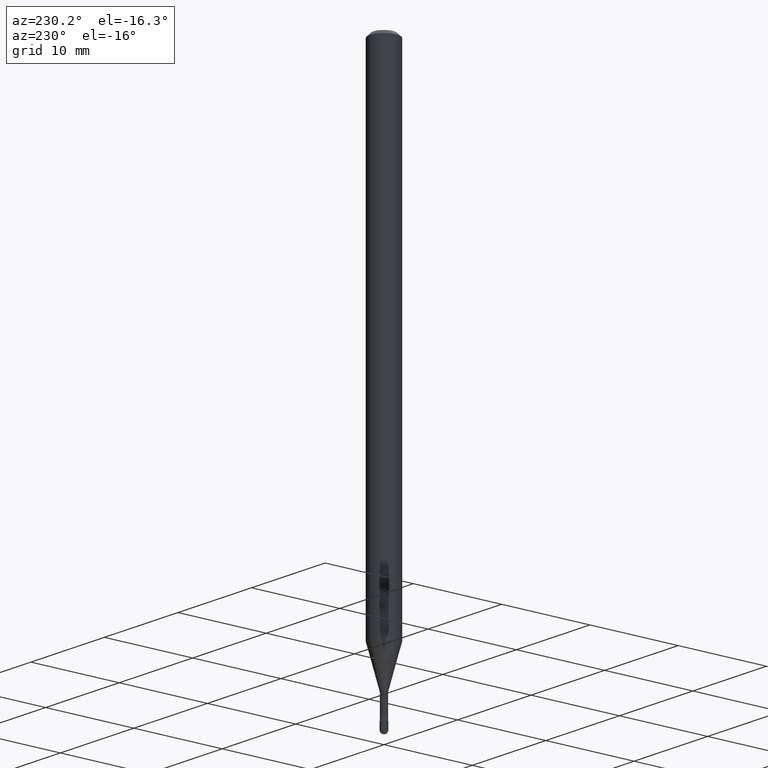
[diagram: clean part render]
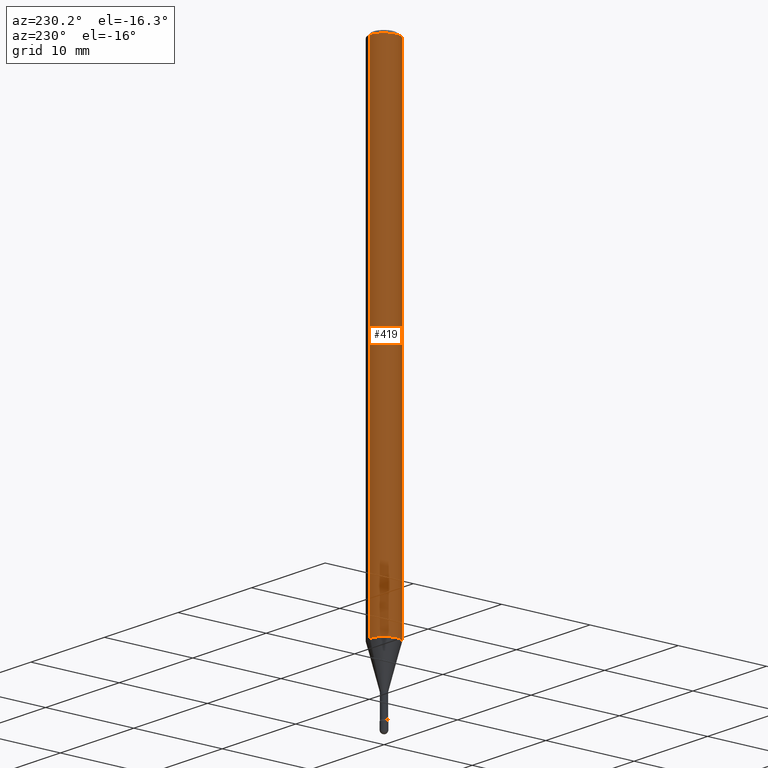
[diagram: same view with one face highlighted and labeled with its STEP entity id]
A machine part, auxiliary view. The second image highlights one B-rep face of the part: STEP entity #419.
In plain terms, the highlighted cylindrical surface (edge-blend (fillet) strip) has radius 1.5875 mm, axis along (-0, 0, 1).
Its self-contained STEP definition (entity closure, byte-faithful):
#24 = DIRECTION ( 'NONE',  ( -2.445515325509068465E-29, 3.491414720523559495E-15, 1.000000000000000000 ) ) ;
#33 = VERTEX_POINT ( 'NONE', #382 ) ;
#40 = CARTESIAN_POINT ( 'NONE',  ( 4.440892098501154699E-16, 0.06249999999999240885, -2.169368740913667271 ) ) ;
#140 = CYLINDRICAL_SURFACE ( 'NONE', #552, 0.06250000000000000000 ) ;
#172 = EDGE_CURVE ( 'NONE', #298, #371, #269, .T. ) ;
#177 = DIRECTION ( 'NONE',  ( -2.445515325509068465E-29, 3.491414720523559495E-15, 1.000000000000000000 ) ) ;
#181 = FACE_OUTER_BOUND ( 'NONE', #328, .T. ) ;
#187 = CARTESIAN_POINT ( 'NONE',  ( 4.440892098500625669E-16, 0.06250000000000000000, 2.598599788585235948E-16 ) ) ;
#206 = DIRECTION ( 'NONE',  ( -6.982962677686265922E-15, -1.000000000000000000, 4.370956789862821150E-15 ) ) ;
#221 = CARTESIAN_POINT ( 'NONE',  ( -1.169113584055446105E-44, 1.669184350826100908E-30, 4.780733988912460139E-16 ) ) ;
#230 = LINE ( 'NONE', #187, #287 ) ;
#262 = DIRECTION ( 'NONE',  ( -2.445515325509068745E-29, 3.491414720523559101E-15, 1.000000000000000000 ) ) ;
#269 = CIRCLE ( 'NONE', #433, 0.06250000000000000000 ) ;
#270 = CIRCLE ( 'NONE', #395, 0.06250000000000000000 ) ;
#273 = ORIENTED_EDGE ( 'NONE', *, *, #538, .F. ) ;
#274 = CARTESIAN_POINT ( 'NONE',  ( 3.668272988263622946E-31, -5.237122080785368381E-17, -0.01500000000000008271 ) ) ;
#286 = VECTOR ( 'NONE', #262, 39.37007874015748143 ) ;
#287 = VECTOR ( 'NONE', #372, 39.37007874015748143 ) ;
#293 = EDGE_CURVE ( 'NONE', #371, #360, #564, .T. ) ;
#295 = CARTESIAN_POINT ( 'NONE',  ( -4.364351673553385199E-16, -0.06250000000000757727, -2.169368740913666826 ) ) ;
#298 = VERTEX_POINT ( 'NONE', #40 ) ;
#328 = EDGE_LOOP ( 'NONE', ( #273, #479, #472, #348 ) ) ;
#348 = ORIENTED_EDGE ( 'NONE', *, *, #494, .F. ) ;
#355 = CARTESIAN_POINT ( 'NONE',  ( -4.364351673553912750E-16, -0.06250000000000005551, -0.01499999999999986587 ) ) ;
#360 = VERTEX_POINT ( 'NONE', #355 ) ;
#371 = VERTEX_POINT ( 'NONE', #295 ) ;
#372 = DIRECTION ( 'NONE',  ( -2.445515325509068745E-29, 3.491414720523559101E-15, 1.000000000000000000 ) ) ;
#382 = CARTESIAN_POINT ( 'NONE',  ( 4.440892098501160615E-16, 0.06249999999999995837, -0.01500000000000030129 ) ) ;
#395 = AXIS2_PLACEMENT_3D ( 'NONE', #274, #440, #404 ) ;
#404 = DIRECTION ( 'NONE',  ( -6.982962677686265922E-15, -1.000000000000000000, 3.483106191921935554E-15 ) ) ;
#417 = CARTESIAN_POINT ( 'NONE',  ( 5.305224502584683767E-29, -7.574165956269636631E-15, -2.169368740913666826 ) ) ;
#419 = ADVANCED_FACE ( 'NONE', ( #181 ), #140, .T. ) ;
#433 = AXIS2_PLACEMENT_3D ( 'NONE', #417, #24, #206 ) ;
#440 = DIRECTION ( 'NONE',  ( -2.445515325509068465E-29, 3.491414720523559495E-15, 1.000000000000000000 ) ) ;
#472 = ORIENTED_EDGE ( 'NONE', *, *, #293, .T. ) ;
#479 = ORIENTED_EDGE ( 'NONE', *, *, #172, .T. ) ;
#494 = EDGE_CURVE ( 'NONE', #33, #360, #270, .T. ) ;
#508 = CARTESIAN_POINT ( 'NONE',  ( -4.364351673553916201E-16, -0.06250000000000000000, 6.962868189239685810E-16 ) ) ;
#523 = DIRECTION ( 'NONE',  ( -6.982962677686265922E-15, -1.000000000000000000, 3.491414720523560678E-15 ) ) ;
#538 = EDGE_CURVE ( 'NONE', #298, #33, #230, .T. ) ;
#552 = AXIS2_PLACEMENT_3D ( 'NONE', #221, #177, #523 ) ;
#564 = LINE ( 'NONE', #508, #286 ) ;